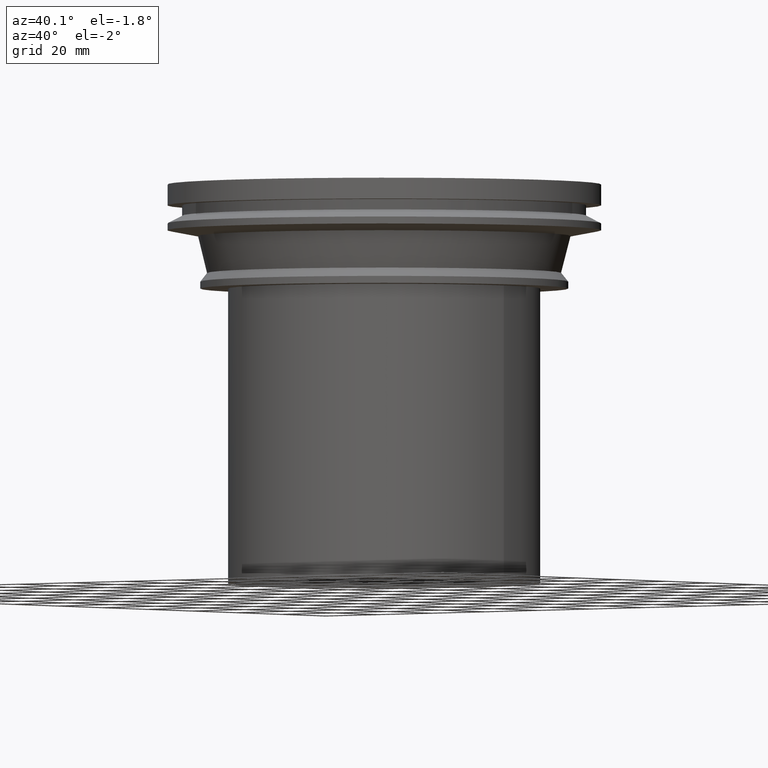
[diagram: clean part render]
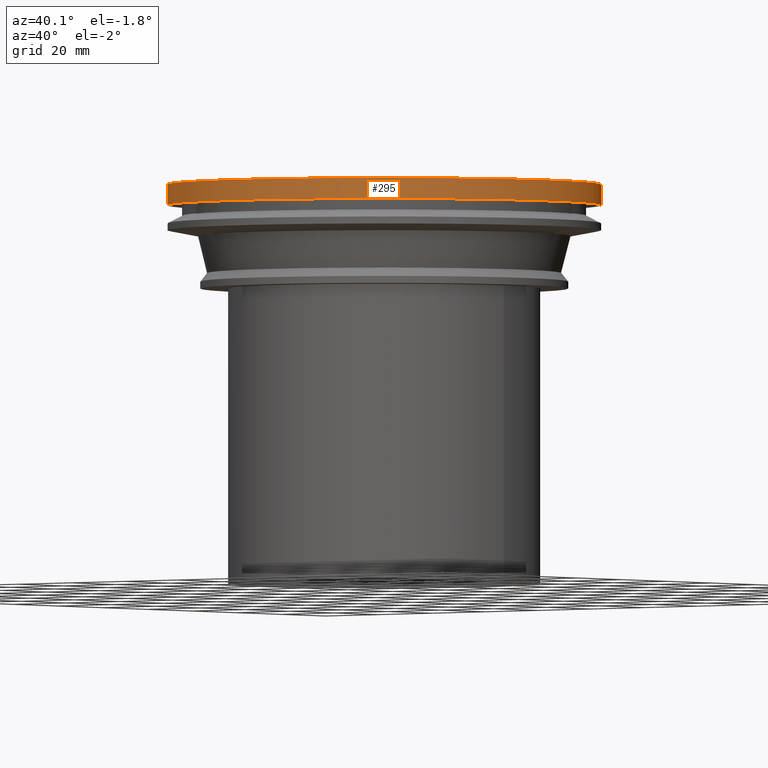
[diagram: same view with one face highlighted and labeled with its STEP entity id]
A machine part, auxiliary view. The second image highlights one B-rep face of the part: STEP entity #295.
In plain terms, the highlighted cylindrical surface (bore or boss wall) has radius 62.5 mm, axis along (0, 0, -1).
Its self-contained STEP definition (entity closure, byte-faithful):
#41=CYLINDRICAL_SURFACE('',#354,62.5);
#58=ORIENTED_EDGE('',*,*,#106,.T.);
#59=ORIENTED_EDGE('',*,*,#104,.F.);
#104=EDGE_CURVE('',#130,#130,#156,.T.);
#106=EDGE_CURVE('',#132,#132,#158,.T.);
#130=VERTEX_POINT('',#522);
#132=VERTEX_POINT('',#527);
#156=CIRCLE('',#352,62.5);
#158=CIRCLE('',#355,62.5);
#188=EDGE_LOOP('',(#58));
#189=EDGE_LOOP('',(#59));
#240=FACE_BOUND('',#188,.T.);
#241=FACE_BOUND('',#189,.T.);
#295=ADVANCED_FACE('',(#240,#241),#41,.T.);
#352=AXIS2_PLACEMENT_3D('',#521,#418,#419);
#354=AXIS2_PLACEMENT_3D('',#525,#422,#423);
#355=AXIS2_PLACEMENT_3D('',#526,#424,#425);
#418=DIRECTION('',(0.,0.,-1.));
#419=DIRECTION('',(-1.,0.,0.));
#422=DIRECTION('',(0.,0.,-1.));
#423=DIRECTION('',(-1.,0.,0.));
#424=DIRECTION('',(0.,0.,-1.));
#425=DIRECTION('',(-1.,0.,0.));
#521=CARTESIAN_POINT('',(0.,0.,-6.00000000000001));
#522=CARTESIAN_POINT('',(-62.5,0.,-6.00000000000001));
#525=CARTESIAN_POINT('',(0.,0.,-50.));
#526=CARTESIAN_POINT('',(0.,0.,-1.38777878078145E-14));
#527=CARTESIAN_POINT('',(-62.5,0.,-1.38777878078145E-14));